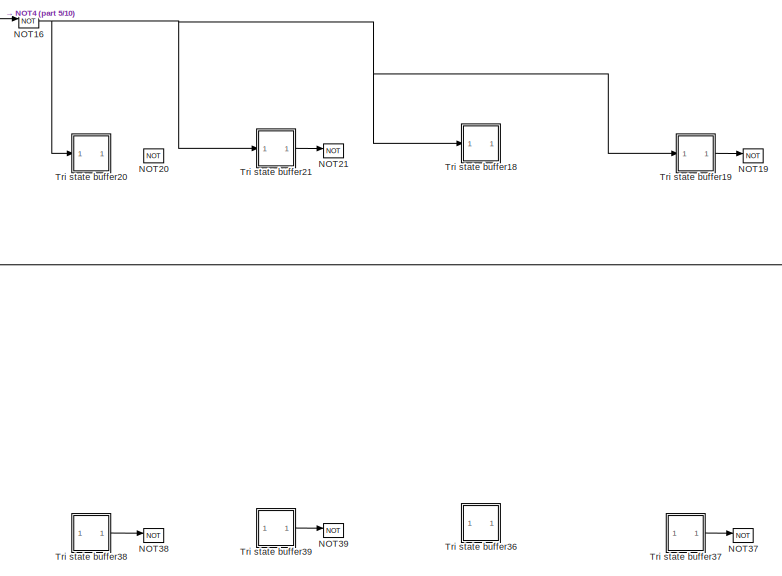
[diagram: root canvas - part 1/10, right side, full height]
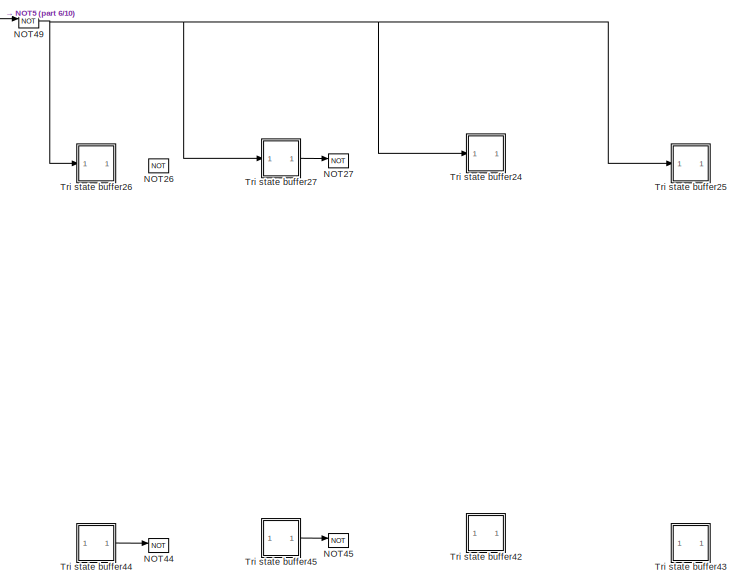
[diagram: root canvas - part 2/10, right side, full height]
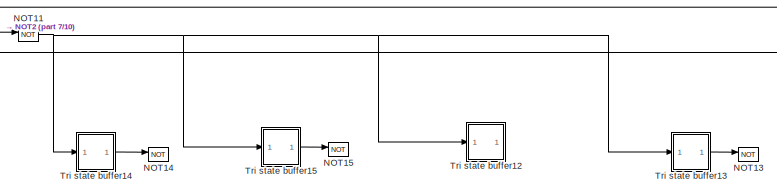
[diagram: root canvas - part 3/10, top center region]
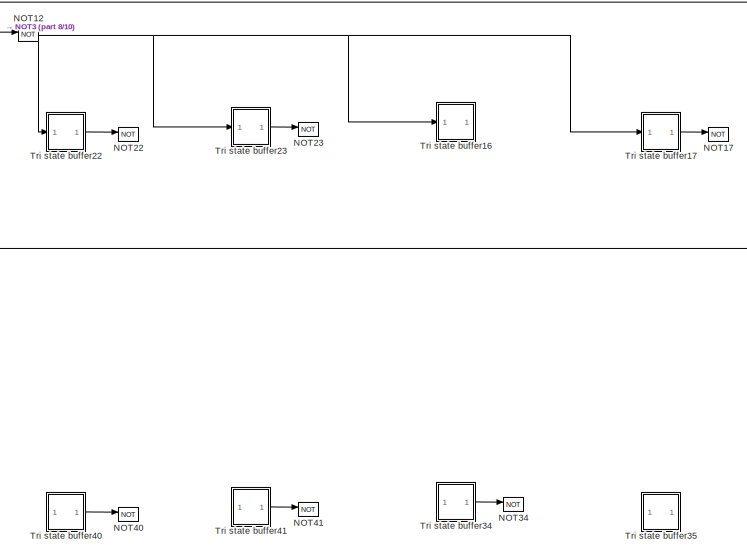
[diagram: root canvas - part 4/10, right side, full height]
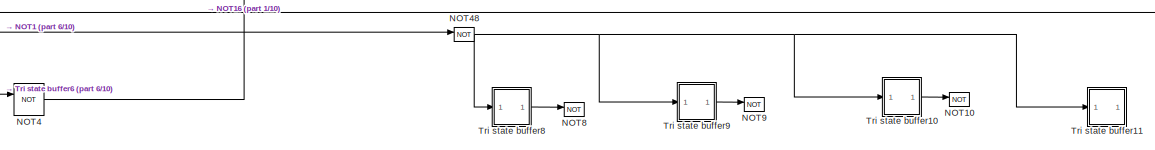
[diagram: root canvas - part 5/10, top center region]
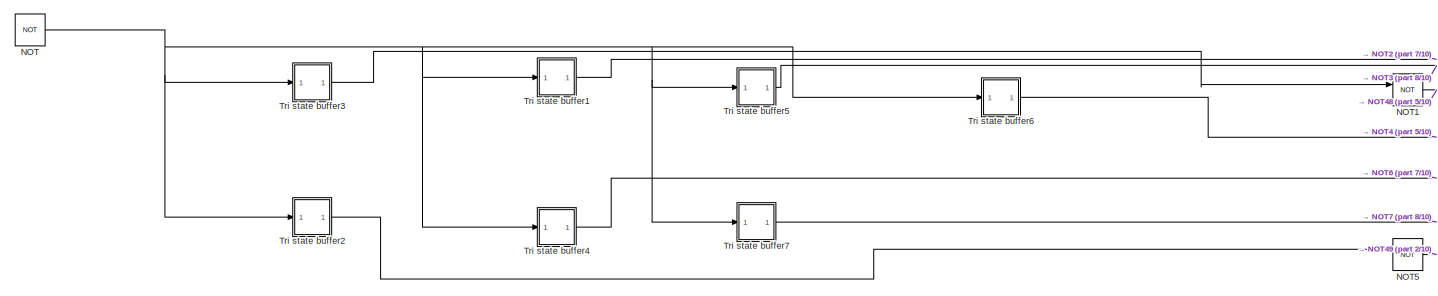
[diagram: root canvas - part 6/10, middle left region]
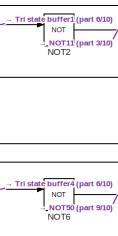
[diagram: root canvas - part 7/10, middle left region]
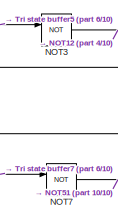
[diagram: root canvas - part 8/10, middle left region]
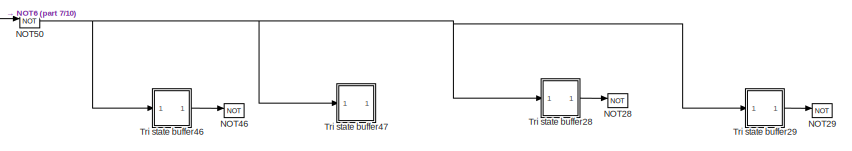
[diagram: root canvas - part 9/10, bottom center region]
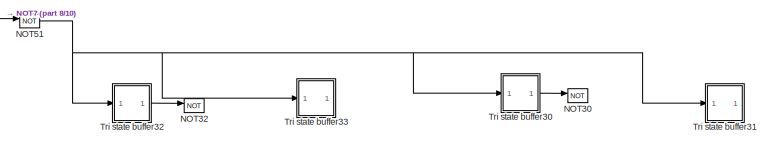
[diagram: root canvas - part 10/10, bottom center region]
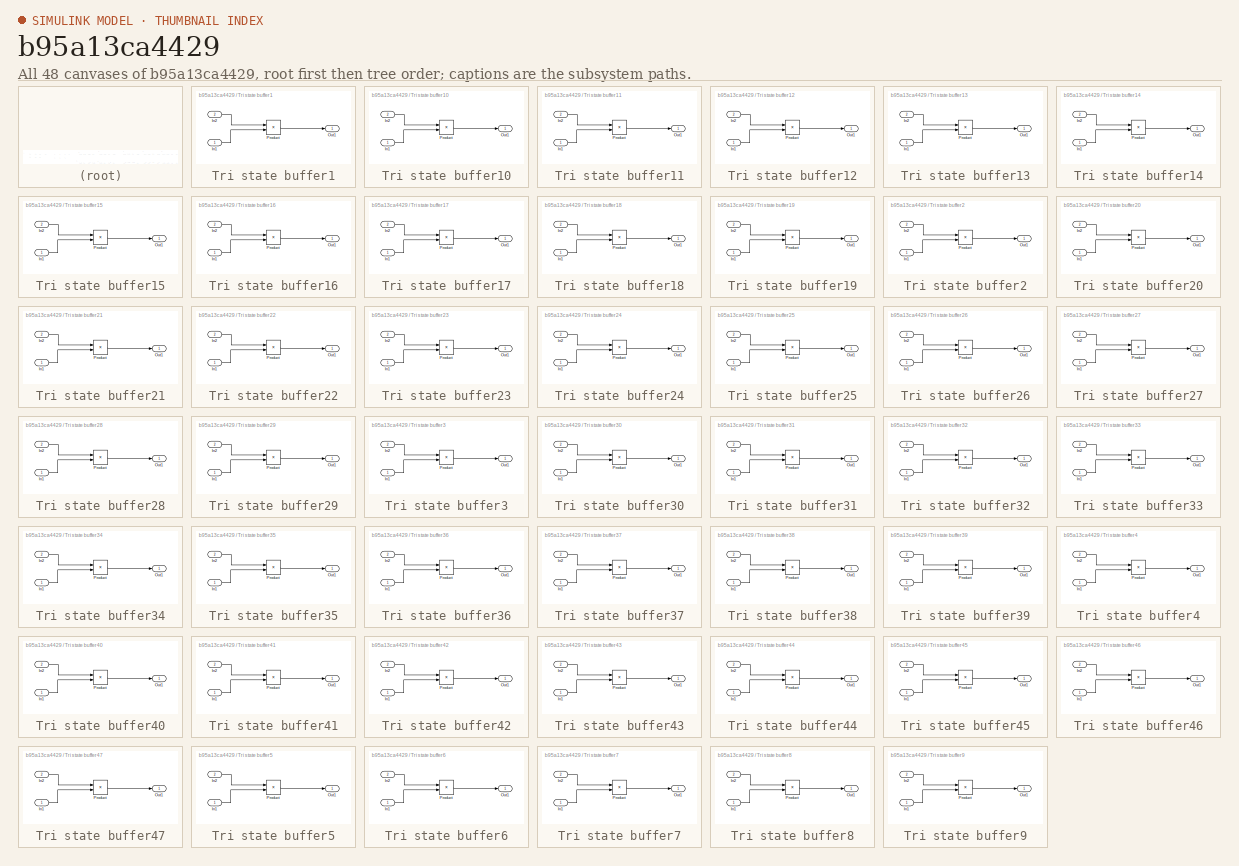
[diagram: thumbnail index - all 48 canvases of the model, root first then tree order]
MODEL slx_b95a13ca4429
KIND model
CONFIG AbsTol = auto
CONFIG EnableMultiTasking = off
CONFIG FixedStep = auto
CONFIG MaxStep = auto
CONFIG MinStep = auto
CONFIG RelTol = 1e-3
CONFIG SampleTimeConstraint = Unconstrained
CONFIG SolverName = VariableStepAuto
CONFIG StartTime = 0.0
CONFIG StopTime = 10.0
BLOCK [Logic] NOT
  AllPortsSameDT = off
  IconShape = distinctive
  Operator = NOT
  OutDataTypeStr = boolean
BLOCK [Logic] NOT1
  AllPortsSameDT = off
  IconShape = distinctive
  Operator = NOT
  OutDataTypeStr = boolean
BLOCK [Logic] NOT10
  AllPortsSameDT = off
  IconShape = distinctive
  Operator = NOT
  OutDataTypeStr = boolean
BLOCK [Logic] NOT11
  AllPortsSameDT = off
  IconShape = distinctive
  Operator = NOT
  OutDataTypeStr = boolean
BLOCK [Logic] NOT12
  AllPortsSameDT = off
  IconShape = distinctive
  Operator = NOT
  OutDataTypeStr = boolean
BLOCK [Logic] NOT13
  AllPortsSameDT = off
  IconShape = distinctive
  Operator = NOT
  OutDataTypeStr = boolean
BLOCK [Logic] NOT14
  AllPortsSameDT = off
  IconShape = distinctive
  Operator = NOT
  OutDataTypeStr = boolean
BLOCK [Logic] NOT15
  AllPortsSameDT = off
  IconShape = distinctive
  Operator = NOT
  OutDataTypeStr = boolean
BLOCK [Logic] NOT16
  AllPortsSameDT = off
  IconShape = distinctive
  Operator = NOT
  OutDataTypeStr = boolean
BLOCK [Logic] NOT17
  AllPortsSameDT = off
  IconShape = distinctive
  Operator = NOT
  OutDataTypeStr = boolean
BLOCK [Logic] NOT19
  AllPortsSameDT = off
  IconShape = distinctive
  Operator = NOT
  OutDataTypeStr = boolean
BLOCK [Logic] NOT2
  AllPortsSameDT = off
  IconShape = distinctive
  Operator = NOT
  OutDataTypeStr = boolean
BLOCK [Logic] NOT20
  AllPortsSameDT = off
  IconShape = distinctive
  Operator = NOT
  OutDataTypeStr = boolean
BLOCK [Logic] NOT21
  AllPortsSameDT = off
  IconShape = distinctive
  Operator = NOT
  OutDataTypeStr = boolean
BLOCK [Logic] NOT22
  AllPortsSameDT = off
  IconShape = distinctive
  Operator = NOT
  OutDataTypeStr = boolean
BLOCK [Logic] NOT23
  AllPortsSameDT = off
  IconShape = distinctive
  Operator = NOT
  OutDataTypeStr = boolean
BLOCK [Logic] NOT26
  AllPortsSameDT = off
  IconShape = distinctive
  Operator = NOT
  OutDataTypeStr = boolean
BLOCK [Logic] NOT27
  AllPortsSameDT = off
  IconShape = distinctive
  Operator = NOT
  OutDataTypeStr = boolean
BLOCK [Logic] NOT28
  AllPortsSameDT = off
  IconShape = distinctive
  Operator = NOT
  OutDataTypeStr = boolean
BLOCK [Logic] NOT29
  AllPortsSameDT = off
  IconShape = distinctive
  Operator = NOT
  OutDataTypeStr = boolean
BLOCK [Logic] NOT3
  AllPortsSameDT = off
  IconShape = distinctive
  Operator = NOT
  OutDataTypeStr = boolean
BLOCK [Logic] NOT30
  AllPortsSameDT = off
  IconShape = distinctive
  Operator = NOT
  OutDataTypeStr = boolean
BLOCK [Logic] NOT32
  AllPortsSameDT = off
  IconShape = distinctive
  Operator = NOT
  OutDataTypeStr = boolean
BLOCK [Logic] NOT34
  AllPortsSameDT = off
  IconShape = distinctive
  Operator = NOT
  OutDataTypeStr = boolean
BLOCK [Logic] NOT37
  AllPortsSameDT = off
  IconShape = distinctive
  Operator = NOT
  OutDataTypeStr = boolean
BLOCK [Logic] NOT38
  AllPortsSameDT = off
  IconShape = distinctive
  Operator = NOT
  OutDataTypeStr = boolean
BLOCK [Logic] NOT39
  AllPortsSameDT = off
  IconShape = distinctive
  Operator = NOT
  OutDataTypeStr = boolean
BLOCK [Logic] NOT4
  AllPortsSameDT = off
  IconShape = distinctive
  Operator = NOT
  OutDataTypeStr = boolean
BLOCK [Logic] NOT40
  AllPortsSameDT = off
  IconShape = distinctive
  Operator = NOT
  OutDataTypeStr = boolean
BLOCK [Logic] NOT41
  AllPortsSameDT = off
  IconShape = distinctive
  Operator = NOT
  OutDataTypeStr = boolean
BLOCK [Logic] NOT44
  AllPortsSameDT = off
  IconShape = distinctive
  Operator = NOT
  OutDataTypeStr = boolean
BLOCK [Logic] NOT45
  AllPortsSameDT = off
  IconShape = distinctive
  Operator = NOT
  OutDataTypeStr = boolean
BLOCK [Logic] NOT46
  AllPortsSameDT = off
  IconShape = distinctive
  Operator = NOT
  OutDataTypeStr = boolean
BLOCK [Logic] NOT48
  AllPortsSameDT = off
  IconShape = distinctive
  Operator = NOT
  OutDataTypeStr = boolean
BLOCK [Logic] NOT49
  AllPortsSameDT = off
  IconShape = distinctive
  Operator = NOT
  OutDataTypeStr = boolean
BLOCK [Logic] NOT5
  AllPortsSameDT = off
  IconShape = distinctive
  Operator = NOT
  OutDataTypeStr = boolean
BLOCK [Logic] NOT50
  AllPortsSameDT = off
  IconShape = distinctive
  Operator = NOT
  OutDataTypeStr = boolean
BLOCK [Logic] NOT51
  AllPortsSameDT = off
  IconShape = distinctive
  Operator = NOT
  OutDataTypeStr = boolean
BLOCK [Logic] NOT6
  AllPortsSameDT = off
  IconShape = distinctive
  Operator = NOT
  OutDataTypeStr = boolean
BLOCK [Logic] NOT7
  AllPortsSameDT = off
  IconShape = distinctive
  Operator = NOT
  OutDataTypeStr = boolean
BLOCK [Logic] NOT8
  AllPortsSameDT = off
  IconShape = distinctive
  Operator = NOT
  OutDataTypeStr = boolean
BLOCK [Logic] NOT9
  AllPortsSameDT = off
  IconShape = distinctive
  Operator = NOT
  OutDataTypeStr = boolean
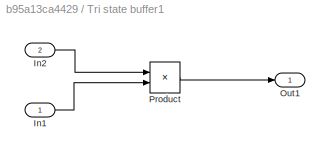
BLOCK [SubSystem] Tri state buffer1
BLOCK [Inport] Tri state buffer1/In1
BLOCK [Inport] Tri state buffer1/In2
  Port = 2
BLOCK [Outport] Tri state buffer1/Out1
BLOCK [Product] Tri state buffer1/Product
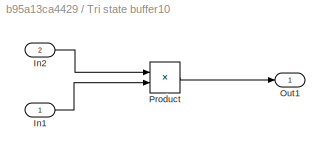
BLOCK [SubSystem] Tri state buffer10
BLOCK [Inport] Tri state buffer10/In1
BLOCK [Inport] Tri state buffer10/In2
  Port = 2
BLOCK [Outport] Tri state buffer10/Out1
BLOCK [Product] Tri state buffer10/Product
BLOCK [SubSystem] Tri state buffer11
BLOCK [Inport] Tri state buffer11/In1
BLOCK [Inport] Tri state buffer11/In2
  Port = 2
BLOCK [Outport] Tri state buffer11/Out1
BLOCK [Product] Tri state buffer11/Product
BLOCK [SubSystem] Tri state buffer12
BLOCK [Inport] Tri state buffer12/In1
BLOCK [Inport] Tri state buffer12/In2
  Port = 2
BLOCK [Outport] Tri state buffer12/Out1
BLOCK [Product] Tri state buffer12/Product
BLOCK [SubSystem] Tri state buffer13
BLOCK [Inport] Tri state buffer13/In1
BLOCK [Inport] Tri state buffer13/In2
  Port = 2
BLOCK [Outport] Tri state buffer13/Out1
BLOCK [Product] Tri state buffer13/Product
BLOCK [SubSystem] Tri state buffer14
BLOCK [Inport] Tri state buffer14/In1
BLOCK [Inport] Tri state buffer14/In2
  Port = 2
BLOCK [Outport] Tri state buffer14/Out1
BLOCK [Product] Tri state buffer14/Product
BLOCK [SubSystem] Tri state buffer15
BLOCK [Inport] Tri state buffer15/In1
BLOCK [Inport] Tri state buffer15/In2
  Port = 2
BLOCK [Outport] Tri state buffer15/Out1
BLOCK [Product] Tri state buffer15/Product
BLOCK [SubSystem] Tri state buffer16
BLOCK [Inport] Tri state buffer16/In1
BLOCK [Inport] Tri state buffer16/In2
  Port = 2
BLOCK [Outport] Tri state buffer16/Out1
BLOCK [Product] Tri state buffer16/Product
BLOCK [SubSystem] Tri state buffer17
BLOCK [Inport] Tri state buffer17/In1
BLOCK [Inport] Tri state buffer17/In2
  Port = 2
BLOCK [Outport] Tri state buffer17/Out1
BLOCK [Product] Tri state buffer17/Product
BLOCK [SubSystem] Tri state buffer18
BLOCK [Inport] Tri state buffer18/In1
BLOCK [Inport] Tri state buffer18/In2
  Port = 2
BLOCK [Outport] Tri state buffer18/Out1
BLOCK [Product] Tri state buffer18/Product
BLOCK [SubSystem] Tri state buffer19
BLOCK [Inport] Tri state buffer19/In1
BLOCK [Inport] Tri state buffer19/In2
  Port = 2
BLOCK [Outport] Tri state buffer19/Out1
BLOCK [Product] Tri state buffer19/Product
BLOCK [SubSystem] Tri state buffer2
BLOCK [Inport] Tri state buffer2/In1
BLOCK [Inport] Tri state buffer2/In2
  Port = 2
BLOCK [Outport] Tri state buffer2/Out1
BLOCK [Product] Tri state buffer2/Product
BLOCK [SubSystem] Tri state buffer20
BLOCK [Inport] Tri state buffer20/In1
BLOCK [Inport] Tri state buffer20/In2
  Port = 2
BLOCK [Outport] Tri state buffer20/Out1
BLOCK [Product] Tri state buffer20/Product
BLOCK [SubSystem] Tri state buffer21
BLOCK [Inport] Tri state buffer21/In1
BLOCK [Inport] Tri state buffer21/In2
  Port = 2
BLOCK [Outport] Tri state buffer21/Out1
BLOCK [Product] Tri state buffer21/Product
BLOCK [SubSystem] Tri state buffer22
BLOCK [Inport] Tri state buffer22/In1
BLOCK [Inport] Tri state buffer22/In2
  Port = 2
BLOCK [Outport] Tri state buffer22/Out1
BLOCK [Product] Tri state buffer22/Product
BLOCK [SubSystem] Tri state buffer23
BLOCK [Inport] Tri state buffer23/In1
BLOCK [Inport] Tri state buffer23/In2
  Port = 2
BLOCK [Outport] Tri state buffer23/Out1
BLOCK [Product] Tri state buffer23/Product
BLOCK [SubSystem] Tri state buffer24
BLOCK [Inport] Tri state buffer24/In1
BLOCK [Inport] Tri state buffer24/In2
  Port = 2
BLOCK [Outport] Tri state buffer24/Out1
BLOCK [Product] Tri state buffer24/Product
BLOCK [SubSystem] Tri state buffer25
BLOCK [Inport] Tri state buffer25/In1
BLOCK [Inport] Tri state buffer25/In2
  Port = 2
BLOCK [Outport] Tri state buffer25/Out1
BLOCK [Product] Tri state buffer25/Product
BLOCK [SubSystem] Tri state buffer26
BLOCK [Inport] Tri state buffer26/In1
BLOCK [Inport] Tri state buffer26/In2
  Port = 2
BLOCK [Outport] Tri state buffer26/Out1
BLOCK [Product] Tri state buffer26/Product
BLOCK [SubSystem] Tri state buffer27
BLOCK [Inport] Tri state buffer27/In1
BLOCK [Inport] Tri state buffer27/In2
  Port = 2
BLOCK [Outport] Tri state buffer27/Out1
BLOCK [Product] Tri state buffer27/Product
BLOCK [SubSystem] Tri state buffer28
BLOCK [Inport] Tri state buffer28/In1
BLOCK [Inport] Tri state buffer28/In2
  Port = 2
BLOCK [Outport] Tri state buffer28/Out1
BLOCK [Product] Tri state buffer28/Product
BLOCK [SubSystem] Tri state buffer29
BLOCK [Inport] Tri state buffer29/In1
BLOCK [Inport] Tri state buffer29/In2
  Port = 2
BLOCK [Outport] Tri state buffer29/Out1
BLOCK [Product] Tri state buffer29/Product
BLOCK [SubSystem] Tri state buffer3
BLOCK [Inport] Tri state buffer3/In1
BLOCK [Inport] Tri state buffer3/In2
  Port = 2
BLOCK [Outport] Tri state buffer3/Out1
BLOCK [Product] Tri state buffer3/Product
BLOCK [SubSystem] Tri state buffer30
BLOCK [Inport] Tri state buffer30/In1
BLOCK [Inport] Tri state buffer30/In2
  Port = 2
BLOCK [Outport] Tri state buffer30/Out1
BLOCK [Product] Tri state buffer30/Product
BLOCK [SubSystem] Tri state buffer31
BLOCK [Inport] Tri state buffer31/In1
BLOCK [Inport] Tri state buffer31/In2
  Port = 2
BLOCK [Outport] Tri state buffer31/Out1
BLOCK [Product] Tri state buffer31/Product
BLOCK [SubSystem] Tri state buffer32
BLOCK [Inport] Tri state buffer32/In1
BLOCK [Inport] Tri state buffer32/In2
  Port = 2
BLOCK [Outport] Tri state buffer32/Out1
BLOCK [Product] Tri state buffer32/Product
BLOCK [SubSystem] Tri state buffer33
BLOCK [Inport] Tri state buffer33/In1
BLOCK [Inport] Tri state buffer33/In2
  Port = 2
BLOCK [Outport] Tri state buffer33/Out1
BLOCK [Product] Tri state buffer33/Product
BLOCK [SubSystem] Tri state buffer34
BLOCK [Inport] Tri state buffer34/In1
BLOCK [Inport] Tri state buffer34/In2
  Port = 2
BLOCK [Outport] Tri state buffer34/Out1
BLOCK [Product] Tri state buffer34/Product
BLOCK [SubSystem] Tri state buffer35
BLOCK [Inport] Tri state buffer35/In1
BLOCK [Inport] Tri state buffer35/In2
  Port = 2
BLOCK [Outport] Tri state buffer35/Out1
BLOCK [Product] Tri state buffer35/Product
BLOCK [SubSystem] Tri state buffer36
BLOCK [Inport] Tri state buffer36/In1
BLOCK [Inport] Tri state buffer36/In2
  Port = 2
BLOCK [Outport] Tri state buffer36/Out1
BLOCK [Product] Tri state buffer36/Product
BLOCK [SubSystem] Tri state buffer37
BLOCK [Inport] Tri state buffer37/In1
BLOCK [Inport] Tri state buffer37/In2
  Port = 2
BLOCK [Outport] Tri state buffer37/Out1
BLOCK [Product] Tri state buffer37/Product
BLOCK [SubSystem] Tri state buffer38
BLOCK [Inport] Tri state buffer38/In1
BLOCK [Inport] Tri state buffer38/In2
  Port = 2
BLOCK [Outport] Tri state buffer38/Out1
BLOCK [Product] Tri state buffer38/Product
BLOCK [SubSystem] Tri state buffer39
BLOCK [Inport] Tri state buffer39/In1
BLOCK [Inport] Tri state buffer39/In2
  Port = 2
BLOCK [Outport] Tri state buffer39/Out1
BLOCK [Product] Tri state buffer39/Product
BLOCK [SubSystem] Tri state buffer4
BLOCK [Inport] Tri state buffer4/In1
BLOCK [Inport] Tri state buffer4/In2
  Port = 2
BLOCK [Outport] Tri state buffer4/Out1
BLOCK [Product] Tri state buffer4/Product
BLOCK [SubSystem] Tri state buffer40
BLOCK [Inport] Tri state buffer40/In1
BLOCK [Inport] Tri state buffer40/In2
  Port = 2
BLOCK [Outport] Tri state buffer40/Out1
BLOCK [Product] Tri state buffer40/Product
BLOCK [SubSystem] Tri state buffer41
BLOCK [Inport] Tri state buffer41/In1
BLOCK [Inport] Tri state buffer41/In2
  Port = 2
BLOCK [Outport] Tri state buffer41/Out1
BLOCK [Product] Tri state buffer41/Product
BLOCK [SubSystem] Tri state buffer42
BLOCK [Inport] Tri state buffer42/In1
BLOCK [Inport] Tri state buffer42/In2
  Port = 2
BLOCK [Outport] Tri state buffer42/Out1
BLOCK [Product] Tri state buffer42/Product
BLOCK [SubSystem] Tri state buffer43
BLOCK [Inport] Tri state buffer43/In1
BLOCK [Inport] Tri state buffer43/In2
  Port = 2
BLOCK [Outport] Tri state buffer43/Out1
BLOCK [Product] Tri state buffer43/Product
BLOCK [SubSystem] Tri state buffer44
BLOCK [Inport] Tri state buffer44/In1
BLOCK [Inport] Tri state buffer44/In2
  Port = 2
BLOCK [Outport] Tri state buffer44/Out1
BLOCK [Product] Tri state buffer44/Product
BLOCK [SubSystem] Tri state buffer45
BLOCK [Inport] Tri state buffer45/In1
BLOCK [Inport] Tri state buffer45/In2
  Port = 2
BLOCK [Outport] Tri state buffer45/Out1
BLOCK [Product] Tri state buffer45/Product
BLOCK [SubSystem] Tri state buffer46
BLOCK [Inport] Tri state buffer46/In1
BLOCK [Inport] Tri state buffer46/In2
  Port = 2
BLOCK [Outport] Tri state buffer46/Out1
BLOCK [Product] Tri state buffer46/Product
BLOCK [SubSystem] Tri state buffer47
BLOCK [Inport] Tri state buffer47/In1
BLOCK [Inport] Tri state buffer47/In2
  Port = 2
BLOCK [Outport] Tri state buffer47/Out1
BLOCK [Product] Tri state buffer47/Product
BLOCK [SubSystem] Tri state buffer5
BLOCK [Inport] Tri state buffer5/In1
BLOCK [Inport] Tri state buffer5/In2
  Port = 2
BLOCK [Outport] Tri state buffer5/Out1
BLOCK [Product] Tri state buffer5/Product
BLOCK [SubSystem] Tri state buffer6
BLOCK [Inport] Tri state buffer6/In1
BLOCK [Inport] Tri state buffer6/In2
  Port = 2
BLOCK [Outport] Tri state buffer6/Out1
BLOCK [Product] Tri state buffer6/Product
BLOCK [SubSystem] Tri state buffer7
BLOCK [Inport] Tri state buffer7/In1
BLOCK [Inport] Tri state buffer7/In2
  Port = 2
BLOCK [Outport] Tri state buffer7/Out1
BLOCK [Product] Tri state buffer7/Product
BLOCK [SubSystem] Tri state buffer8
BLOCK [Inport] Tri state buffer8/In1
BLOCK [Inport] Tri state buffer8/In2
  Port = 2
BLOCK [Outport] Tri state buffer8/Out1
BLOCK [Product] Tri state buffer8/Product
BLOCK [SubSystem] Tri state buffer9
BLOCK [Inport] Tri state buffer9/In1
BLOCK [Inport] Tri state buffer9/In2
  Port = 2
BLOCK [Outport] Tri state buffer9/Out1
BLOCK [Product] Tri state buffer9/Product
NET NOT11:1 -> Tri state buffer12:1, Tri state buffer13:1, Tri state buffer14:1, Tri state buffer15:1
NET NOT12:1 -> Tri state buffer16:1, Tri state buffer17:1, Tri state buffer22:1, Tri state buffer23:1
NET NOT16:1 -> Tri state buffer18:1, Tri state buffer19:1, Tri state buffer20:1, Tri state buffer21:1
LINE NOT1:1 -> NOT48:1
LINE NOT2:1 -> NOT11:1
LINE NOT3:1 -> NOT12:1
NET NOT48:1 -> Tri state buffer10:1, Tri state buffer11:1, Tri state buffer8:1, Tri state buffer9:1
NET NOT49:1 -> Tri state buffer24:1, Tri state buffer25:1, Tri state buffer26:1, Tri state buffer27:1
LINE NOT4:1 -> NOT16:1
NET NOT50:1 -> Tri state buffer28:1, Tri state buffer29:1, Tri state buffer46:1, Tri state buffer47:1
NET NOT51:1 -> Tri state buffer30:1, Tri state buffer31:1, Tri state buffer32:1, Tri state buffer33:1
LINE NOT5:1 -> NOT49:1
LINE NOT6:1 -> NOT50:1
LINE NOT7:1 -> NOT51:1
NET NOT:1 -> Tri state buffer1:1, Tri state buffer2:1, Tri state buffer3:1, Tri state buffer4:1, Tri state buffer5:1, Tri state buffer6:1, Tri state buffer7:1
LINE Tri state buffer1/In1:1 -> Tri state buffer1/Product:2
LINE Tri state buffer1/In2:1 -> Tri state buffer1/Product:1
LINE Tri state buffer1/Product:1 -> Tri state buffer1/Out1:1
LINE Tri state buffer10/In1:1 -> Tri state buffer10/Product:2
LINE Tri state buffer10/In2:1 -> Tri state buffer10/Product:1
LINE Tri state buffer10/Product:1 -> Tri state buffer10/Out1:1
LINE Tri state buffer10:1 -> NOT10:1
LINE Tri state buffer11/In1:1 -> Tri state buffer11/Product:2
LINE Tri state buffer11/In2:1 -> Tri state buffer11/Product:1
LINE Tri state buffer11/Product:1 -> Tri state buffer11/Out1:1
LINE Tri state buffer12/In1:1 -> Tri state buffer12/Product:2
LINE Tri state buffer12/In2:1 -> Tri state buffer12/Product:1
LINE Tri state buffer12/Product:1 -> Tri state buffer12/Out1:1
LINE Tri state buffer13/In1:1 -> Tri state buffer13/Product:2
LINE Tri state buffer13/In2:1 -> Tri state buffer13/Product:1
LINE Tri state buffer13/Product:1 -> Tri state buffer13/Out1:1
LINE Tri state buffer13:1 -> NOT13:1
LINE Tri state buffer14/In1:1 -> Tri state buffer14/Product:2
LINE Tri state buffer14/In2:1 -> Tri state buffer14/Product:1
LINE Tri state buffer14/Product:1 -> Tri state buffer14/Out1:1
LINE Tri state buffer14:1 -> NOT14:1
LINE Tri state buffer15/In1:1 -> Tri state buffer15/Product:2
LINE Tri state buffer15/In2:1 -> Tri state buffer15/Product:1
LINE Tri state buffer15/Product:1 -> Tri state buffer15/Out1:1
LINE Tri state buffer15:1 -> NOT15:1
LINE Tri state buffer16/In1:1 -> Tri state buffer16/Product:2
LINE Tri state buffer16/In2:1 -> Tri state buffer16/Product:1
LINE Tri state buffer16/Product:1 -> Tri state buffer16/Out1:1
LINE Tri state buffer17/In1:1 -> Tri state buffer17/Product:2
LINE Tri state buffer17/In2:1 -> Tri state buffer17/Product:1
LINE Tri state buffer17/Product:1 -> Tri state buffer17/Out1:1
LINE Tri state buffer17:1 -> NOT17:1
LINE Tri state buffer18/In1:1 -> Tri state buffer18/Product:2
LINE Tri state buffer18/In2:1 -> Tri state buffer18/Product:1
LINE Tri state buffer18/Product:1 -> Tri state buffer18/Out1:1
LINE Tri state buffer19/In1:1 -> Tri state buffer19/Product:2
LINE Tri state buffer19/In2:1 -> Tri state buffer19/Product:1
LINE Tri state buffer19/Product:1 -> Tri state buffer19/Out1:1
LINE Tri state buffer19:1 -> NOT19:1
LINE Tri state buffer1:1 -> NOT2:1
LINE Tri state buffer2/In1:1 -> Tri state buffer2/Product:2
LINE Tri state buffer2/In2:1 -> Tri state buffer2/Product:1
LINE Tri state buffer2/Product:1 -> Tri state buffer2/Out1:1
LINE Tri state buffer20/In1:1 -> Tri state buffer20/Product:2
LINE Tri state buffer20/In2:1 -> Tri state buffer20/Product:1
LINE Tri state buffer20/Product:1 -> Tri state buffer20/Out1:1
LINE Tri state buffer21/In1:1 -> Tri state buffer21/Product:2
LINE Tri state buffer21/In2:1 -> Tri state buffer21/Product:1
LINE Tri state buffer21/Product:1 -> Tri state buffer21/Out1:1
LINE Tri state buffer21:1 -> NOT21:1
LINE Tri state buffer22/In1:1 -> Tri state buffer22/Product:2
LINE Tri state buffer22/In2:1 -> Tri state buffer22/Product:1
LINE Tri state buffer22/Product:1 -> Tri state buffer22/Out1:1
LINE Tri state buffer22:1 -> NOT22:1
LINE Tri state buffer23/In1:1 -> Tri state buffer23/Product:2
LINE Tri state buffer23/In2:1 -> Tri state buffer23/Product:1
LINE Tri state buffer23/Product:1 -> Tri state buffer23/Out1:1
LINE Tri state buffer23:1 -> NOT23:1
LINE Tri state buffer24/In1:1 -> Tri state buffer24/Product:2
LINE Tri state buffer24/In2:1 -> Tri state buffer24/Product:1
LINE Tri state buffer24/Product:1 -> Tri state buffer24/Out1:1
LINE Tri state buffer25/In1:1 -> Tri state buffer25/Product:2
LINE Tri state buffer25/In2:1 -> Tri state buffer25/Product:1
LINE Tri state buffer25/Product:1 -> Tri state buffer25/Out1:1
LINE Tri state buffer26/In1:1 -> Tri state buffer26/Product:2
LINE Tri state buffer26/In2:1 -> Tri state buffer26/Product:1
LINE Tri state buffer26/Product:1 -> Tri state buffer26/Out1:1
LINE Tri state buffer27/In1:1 -> Tri state buffer27/Product:2
LINE Tri state buffer27/In2:1 -> Tri state buffer27/Product:1
LINE Tri state buffer27/Product:1 -> Tri state buffer27/Out1:1
LINE Tri state buffer27:1 -> NOT27:1
LINE Tri state buffer28/In1:1 -> Tri state buffer28/Product:2
LINE Tri state buffer28/In2:1 -> Tri state buffer28/Product:1
LINE Tri state buffer28/Product:1 -> Tri state buffer28/Out1:1
LINE Tri state buffer28:1 -> NOT28:1
LINE Tri state buffer29/In1:1 -> Tri state buffer29/Product:2
LINE Tri state buffer29/In2:1 -> Tri state buffer29/Product:1
LINE Tri state buffer29/Product:1 -> Tri state buffer29/Out1:1
LINE Tri state buffer29:1 -> NOT29:1
LINE Tri state buffer2:1 -> NOT5:1
LINE Tri state buffer3/In1:1 -> Tri state buffer3/Product:2
LINE Tri state buffer3/In2:1 -> Tri state buffer3/Product:1
LINE Tri state buffer3/Product:1 -> Tri state buffer3/Out1:1
LINE Tri state buffer30/In1:1 -> Tri state buffer30/Product:2
LINE Tri state buffer30/In2:1 -> Tri state buffer30/Product:1
LINE Tri state buffer30/Product:1 -> Tri state buffer30/Out1:1
LINE Tri state buffer30:1 -> NOT30:1
LINE Tri state buffer31/In1:1 -> Tri state buffer31/Product:2
LINE Tri state buffer31/In2:1 -> Tri state buffer31/Product:1
LINE Tri state buffer31/Product:1 -> Tri state buffer31/Out1:1
LINE Tri state buffer32/In1:1 -> Tri state buffer32/Product:2
LINE Tri state buffer32/In2:1 -> Tri state buffer32/Product:1
LINE Tri state buffer32/Product:1 -> Tri state buffer32/Out1:1
LINE Tri state buffer32:1 -> NOT32:1
LINE Tri state buffer33/In1:1 -> Tri state buffer33/Product:2
LINE Tri state buffer33/In2:1 -> Tri state buffer33/Product:1
LINE Tri state buffer33/Product:1 -> Tri state buffer33/Out1:1
LINE Tri state buffer34/In1:1 -> Tri state buffer34/Product:2
LINE Tri state buffer34/In2:1 -> Tri state buffer34/Product:1
LINE Tri state buffer34/Product:1 -> Tri state buffer34/Out1:1
LINE Tri state buffer34:1 -> NOT34:1
LINE Tri state buffer35/In1:1 -> Tri state buffer35/Product:2
LINE Tri state buffer35/In2:1 -> Tri state buffer35/Product:1
LINE Tri state buffer35/Product:1 -> Tri state buffer35/Out1:1
LINE Tri state buffer36/In1:1 -> Tri state buffer36/Product:2
LINE Tri state buffer36/In2:1 -> Tri state buffer36/Product:1
LINE Tri state buffer36/Product:1 -> Tri state buffer36/Out1:1
LINE Tri state buffer37/In1:1 -> Tri state buffer37/Product:2
LINE Tri state buffer37/In2:1 -> Tri state buffer37/Product:1
LINE Tri state buffer37/Product:1 -> Tri state buffer37/Out1:1
LINE Tri state buffer37:1 -> NOT37:1
LINE Tri state buffer38/In1:1 -> Tri state buffer38/Product:2
LINE Tri state buffer38/In2:1 -> Tri state buffer38/Product:1
LINE Tri state buffer38/Product:1 -> Tri state buffer38/Out1:1
LINE Tri state buffer38:1 -> NOT38:1
LINE Tri state buffer39/In1:1 -> Tri state buffer39/Product:2
LINE Tri state buffer39/In2:1 -> Tri state buffer39/Product:1
LINE Tri state buffer39/Product:1 -> Tri state buffer39/Out1:1
LINE Tri state buffer39:1 -> NOT39:1
LINE Tri state buffer3:1 -> NOT1:1
LINE Tri state buffer4/In1:1 -> Tri state buffer4/Product:2
LINE Tri state buffer4/In2:1 -> Tri state buffer4/Product:1
LINE Tri state buffer4/Product:1 -> Tri state buffer4/Out1:1
LINE Tri state buffer40/In1:1 -> Tri state buffer40/Product:2
LINE Tri state buffer40/In2:1 -> Tri state buffer40/Product:1
LINE Tri state buffer40/Product:1 -> Tri state buffer40/Out1:1
LINE Tri state buffer40:1 -> NOT40:1
LINE Tri state buffer41/In1:1 -> Tri state buffer41/Product:2
LINE Tri state buffer41/In2:1 -> Tri state buffer41/Product:1
LINE Tri state buffer41/Product:1 -> Tri state buffer41/Out1:1
LINE Tri state buffer41:1 -> NOT41:1
LINE Tri state buffer42/In1:1 -> Tri state buffer42/Product:2
LINE Tri state buffer42/In2:1 -> Tri state buffer42/Product:1
LINE Tri state buffer42/Product:1 -> Tri state buffer42/Out1:1
LINE Tri state buffer43/In1:1 -> Tri state buffer43/Product:2
LINE Tri state buffer43/In2:1 -> Tri state buffer43/Product:1
LINE Tri state buffer43/Product:1 -> Tri state buffer43/Out1:1
LINE Tri state buffer44/In1:1 -> Tri state buffer44/Product:2
LINE Tri state buffer44/In2:1 -> Tri state buffer44/Product:1
LINE Tri state buffer44/Product:1 -> Tri state buffer44/Out1:1
LINE Tri state buffer44:1 -> NOT44:1
LINE Tri state buffer45/In1:1 -> Tri state buffer45/Product:2
LINE Tri state buffer45/In2:1 -> Tri state buffer45/Product:1
LINE Tri state buffer45/Product:1 -> Tri state buffer45/Out1:1
LINE Tri state buffer45:1 -> NOT45:1
LINE Tri state buffer46/In1:1 -> Tri state buffer46/Product:2
LINE Tri state buffer46/In2:1 -> Tri state buffer46/Product:1
LINE Tri state buffer46/Product:1 -> Tri state buffer46/Out1:1
LINE Tri state buffer46:1 -> NOT46:1
LINE Tri state buffer47/In1:1 -> Tri state buffer47/Product:2
LINE Tri state buffer47/In2:1 -> Tri state buffer47/Product:1
LINE Tri state buffer47/Product:1 -> Tri state buffer47/Out1:1
LINE Tri state buffer4:1 -> NOT6:1
LINE Tri state buffer5/In1:1 -> Tri state buffer5/Product:2
LINE Tri state buffer5/In2:1 -> Tri state buffer5/Product:1
LINE Tri state buffer5/Product:1 -> Tri state buffer5/Out1:1
LINE Tri state buffer5:1 -> NOT3:1
LINE Tri state buffer6/In1:1 -> Tri state buffer6/Product:2
LINE Tri state buffer6/In2:1 -> Tri state buffer6/Product:1
LINE Tri state buffer6/Product:1 -> Tri state buffer6/Out1:1
LINE Tri state buffer6:1 -> NOT4:1
LINE Tri state buffer7/In1:1 -> Tri state buffer7/Product:2
LINE Tri state buffer7/In2:1 -> Tri state buffer7/Product:1
LINE Tri state buffer7/Product:1 -> Tri state buffer7/Out1:1
LINE Tri state buffer7:1 -> NOT7:1
LINE Tri state buffer8/In1:1 -> Tri state buffer8/Product:2
LINE Tri state buffer8/In2:1 -> Tri state buffer8/Product:1
LINE Tri state buffer8/Product:1 -> Tri state buffer8/Out1:1
LINE Tri state buffer8:1 -> NOT8:1
LINE Tri state buffer9/In1:1 -> Tri state buffer9/Product:2
LINE Tri state buffer9/In2:1 -> Tri state buffer9/Product:1
LINE Tri state buffer9/Product:1 -> Tri state buffer9/Out1:1
LINE Tri state buffer9:1 -> NOT9:1
note: NET lines group one-source signal fan-out (src -> all destinations, sorted); 1:1 wires keep LINE
